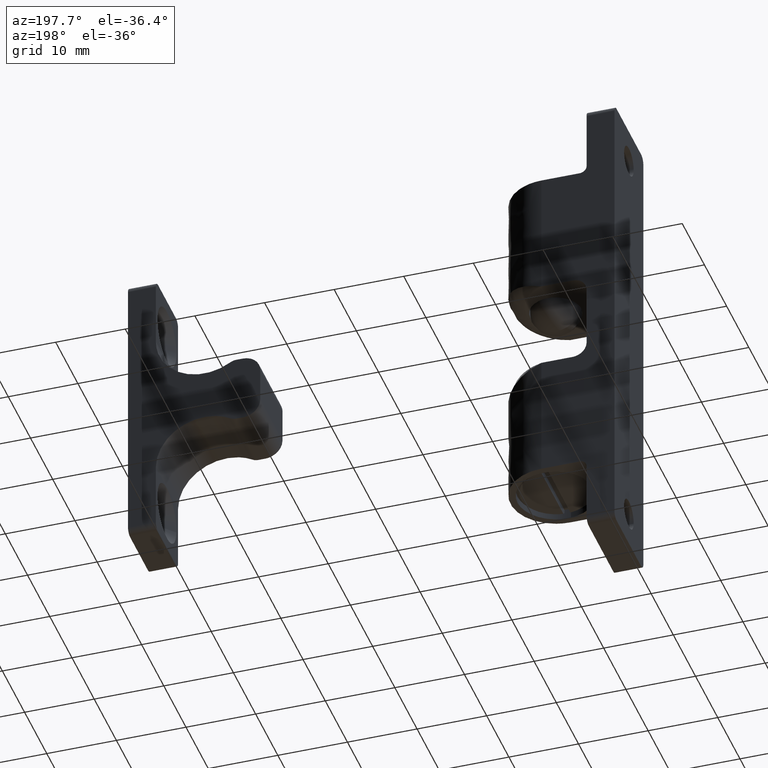
[diagram: clean part render]
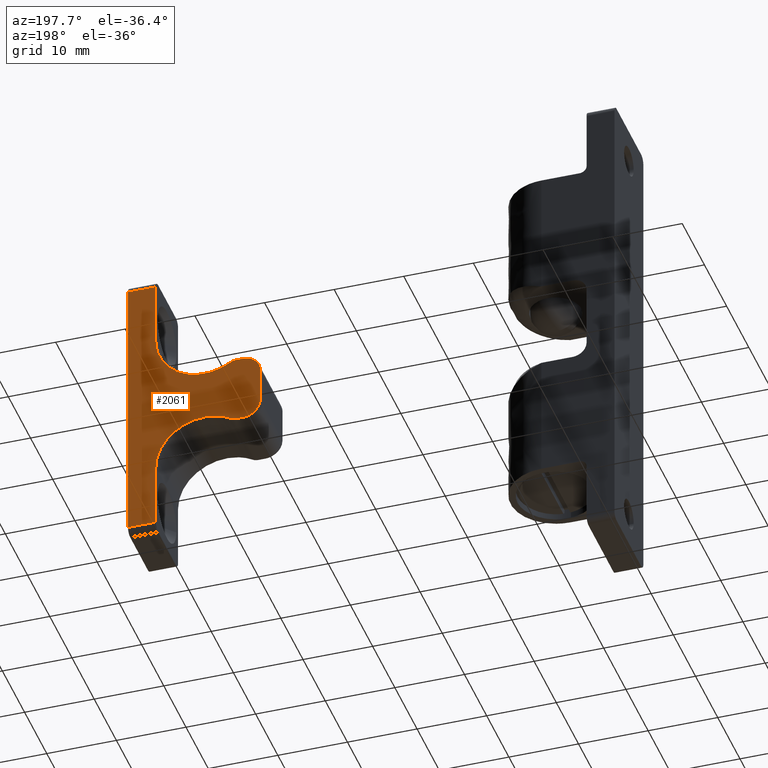
[diagram: same view with one face highlighted and labeled with its STEP entity id]
A machine part, auxiliary view. The second image highlights one B-rep face of the part: STEP entity #2061.
In plain terms, the highlighted face is a freeform B-spline surface patch.
Its self-contained STEP definition (entity closure, byte-faithful):
#1744=CARTESIAN_POINT('',(70.357143802650100,5.0,20.0));
#1745=VERTEX_POINT('',#1744);
#1761=CARTESIAN_POINT('',(66.357143802650100,5.0,20.0));
#1762=VERTEX_POINT('',#1761);
#1763=CARTESIAN_POINT('',(66.357143802650100,5.0,20.0));
#1764=CARTESIAN_POINT('',(70.357143802650100,5.0,20.0));
#1765=QUASI_UNIFORM_CURVE('',1,(#1763,#1764),.UNSPECIFIED.,.F.,.U.);
#1766=EDGE_CURVE('',#1762,#1745,#1765,.T.);
#1805=CARTESIAN_POINT('',(66.357143802650100,5.0,-20.0));
#1806=VERTEX_POINT('',#1805);
#1822=CARTESIAN_POINT('',(70.357143802650100,5.0,-20.0));
#1823=VERTEX_POINT('',#1822);
#1824=CARTESIAN_POINT('',(70.357143802650100,5.0,-20.0));
#1825=CARTESIAN_POINT('',(66.357143802650100,5.0,-20.0));
#1826=QUASI_UNIFORM_CURVE('',1,(#1824,#1825),.UNSPECIFIED.,.F.,.U.);
#1827=EDGE_CURVE('',#1823,#1806,#1826,.T.);
#1913=CARTESIAN_POINT('',(71.306193765824432,5.0,21.997999922472239));
#1914=CARTESIAN_POINT('',(71.306193765824432,5.0,-21.998000995355849));
#1915=CARTESIAN_POINT('',(50.408093329856079,5.0,21.997999922472239));
#1916=CARTESIAN_POINT('',(50.408093329856079,5.0,-21.998000995355849));
#1917=B_SPLINE_SURFACE_WITH_KNOTS('',1,1,((#1913,#1915),(#1914,#1916)),.UNSPECIFIED.,.F.,.F.,.U.,(2,2),(2,2),(0.0,43.996000917828077),(0.0,20.898100435968349),.UNSPECIFIED.);
#1918=CARTESIAN_POINT('',(70.357143802650100,5.0,-20.0));
#1919=CARTESIAN_POINT('',(70.357143802650100,5.0,20.0));
#1920=QUASI_UNIFORM_CURVE('',1,(#1918,#1919),.UNSPECIFIED.,.F.,.U.);
#1921=EDGE_CURVE('',#1823,#1745,#1920,.T.);
#1922=ORIENTED_EDGE('',*,*,#1921,.F.);
#1923=ORIENTED_EDGE('',*,*,#1827,.T.);
#1924=CARTESIAN_POINT('',(66.357143802650199,5.0,-10.699999999999999));
#1925=VERTEX_POINT('',#1924);
#1926=CARTESIAN_POINT('',(66.357143802650199,5.0,-10.699999999999999));
#1927=CARTESIAN_POINT('',(66.357143802650100,5.0,-20.0));
#1928=QUASI_UNIFORM_CURVE('',1,(#1926,#1927),.UNSPECIFIED.,.F.,.U.);
#1929=EDGE_CURVE('',#1925,#1806,#1928,.T.);
#1930=ORIENTED_EDGE('',*,*,#1929,.F.);
#1931=CARTESIAN_POINT('',(55.636649540521113,5.0,-4.770588229900980));
#1932=VERTEX_POINT('',#1931);
#1933=CARTESIAN_POINT('',(66.357143802650199,5.0,-10.699999999999999));
#1934=CARTESIAN_POINT('',(66.357323969569620,4.999999999999996,-10.097816950553490));
#1935=CARTESIAN_POINT('',(66.243630446506131,5.000000000000013,-9.223810337261186));
#1936=CARTESIAN_POINT('',(65.850133263796295,4.999999999999978,-8.021811733403471));
#1937=CARTESIAN_POINT('',(65.427941784387187,5.000000000000032,-7.165074977214172));
#1938=CARTESIAN_POINT('',(64.820385979991684,4.999999999999957,-6.283745843785428));
#1939=CARTESIAN_POINT('',(64.169875251778180,5.000000000000003,-5.584411615700634));
#1940=CARTESIAN_POINT('',(63.368020598776731,5.000000000000012,-4.935952460330062));
#1941=CARTESIAN_POINT('',(62.350211744992713,5.000000000000116,-4.322019987580153));
#1942=CARTESIAN_POINT('',(61.173220756148027,4.999999999999914,-3.896308400244194));
#1943=CARTESIAN_POINT('',(59.961964953373467,5.000000000000053,-3.701283642308237));
#1944=CARTESIAN_POINT('',(58.988103380192861,4.999999999999980,-3.687603219424808));
#1945=CARTESIAN_POINT('',(57.906447564772357,4.999999999999981,-3.821613644424225));
#1946=CARTESIAN_POINT('',(56.781714678927223,5.000000000000094,-4.146883239857901));
#1947=CARTESIAN_POINT('',(55.998605764583083,4.999999999999926,-4.543422076382963));
#1948=CARTESIAN_POINT('',(55.636649540521113,5.0,-4.770588229900980));
#1949=B_SPLINE_CURVE_WITH_KNOTS('',3,(#1933,#1934,#1935,#1936,#1937,#1938,#1939,#1940,#1941,#1942,#1943,#1944,#1945,#1946,#1947,#1948),.UNSPECIFIED.,.F.,.U.,(4,1,1,1,1,1,1,1,1,1,1,1,1,4),(0.000000135131279,1.806483105624618,2.622340153740220,3.787826642804648,4.661950192357793,5.827425139525172,6.643276103920998,7.750445773604302,9.382150152678843,10.372804736471750,11.421752590488239,12.295865163954350,13.636196021245320,14.918203450037700),.UNSPECIFIED.);
#1950=EDGE_CURVE('',#1925,#1932,#1949,.T.);
#1951=ORIENTED_EDGE('',*,*,#1950,.T.);
#1952=CARTESIAN_POINT('',(54.839400802649998,5.0,-5.0));
#1953=VERTEX_POINT('',#1952);
#1954=CARTESIAN_POINT('',(54.839400802649998,5.0,-5.0));
#1955=CARTESIAN_POINT('',(55.271032285777110,5.0,-5.0));
#1956=CARTESIAN_POINT('',(55.636649540521113,5.0,-4.770588229900988));
#1964=(BOUNDED_CURVE()B_SPLINE_CURVE(2,(#1954,#1955,#1956),.UNSPECIFIED.,.F.,.U.)CURVE()GEOMETRIC_REPRESENTATION_ITEM()QUASI_UNIFORM_CURVE()RATIONAL_B_SPLINE_CURVE((1.0,0.961004375623231,1.0))REPRESENTATION_ITEM(''));
#1965=EDGE_CURVE('',#1953,#1932,#1964,.T.);
#1966=ORIENTED_EDGE('',*,*,#1965,.F.);
#1967=CARTESIAN_POINT('',(53.857143802650100,5.0,-5.0));
#1968=VERTEX_POINT('',#1967);
#1969=CARTESIAN_POINT('',(53.857143802650100,5.0,-5.0));
#1970=CARTESIAN_POINT('',(54.839400802649998,5.0,-5.0));
#1971=QUASI_UNIFORM_CURVE('',1,(#1969,#1970),.UNSPECIFIED.,.F.,.U.);
#1972=EDGE_CURVE('',#1968,#1953,#1971,.T.);
#1973=ORIENTED_EDGE('',*,*,#1972,.F.);
#1974=CARTESIAN_POINT('',(51.357143802650199,5.0,-2.500000000000000));
#1975=VERTEX_POINT('',#1974);
#1976=CARTESIAN_POINT('',(51.357143802650100,5.0,-2.500000000000000));
#1977=CARTESIAN_POINT('',(51.357143802650093,5.000000000000001,-5.000000000000001));
#1978=CARTESIAN_POINT('',(53.857143802650100,5.0,-5.0));
#1986=(BOUNDED_CURVE()B_SPLINE_CURVE(2,(#1976,#1977,#1978),.UNSPECIFIED.,.F.,.U.)CURVE()GEOMETRIC_REPRESENTATION_ITEM()QUASI_UNIFORM_CURVE()RATIONAL_B_SPLINE_CURVE((1.0,0.707106781186548,1.0))REPRESENTATION_ITEM(''));
#1987=EDGE_CURVE('',#1975,#1968,#1986,.T.);
#1988=ORIENTED_EDGE('',*,*,#1987,.F.);
#1989=CARTESIAN_POINT('',(51.357143802650100,5.0,2.500000000000000));
#1990=VERTEX_POINT('',#1989);
#1991=CARTESIAN_POINT('',(51.357143802650100,5.0,2.500000000000000));
#1992=CARTESIAN_POINT('',(51.357143802650199,5.0,-2.500000000000000));
#1993=QUASI_UNIFORM_CURVE('',1,(#1991,#1992),.UNSPECIFIED.,.F.,.U.);
#1994=EDGE_CURVE('',#1990,#1975,#1993,.T.);
#1995=ORIENTED_EDGE('',*,*,#1994,.F.);
#1996=CARTESIAN_POINT('',(53.857143802650100,5.0,5.0));
#1997=VERTEX_POINT('',#1996);
#1998=CARTESIAN_POINT('',(53.857143802650100,5.0,5.0));
#1999=CARTESIAN_POINT('',(51.357143802650093,5.000000000000001,5.000000000000001));
#2000=CARTESIAN_POINT('',(51.357143802650100,5.0,2.500000000000000));
#2008=(BOUNDED_CURVE()B_SPLINE_CURVE(2,(#1998,#1999,#2000),.UNSPECIFIED.,.F.,.U.)CURVE()GEOMETRIC_REPRESENTATION_ITEM()QUASI_UNIFORM_CURVE()RATIONAL_B_SPLINE_CURVE((1.0,0.707106781186548,1.0))REPRESENTATION_ITEM(''));
#2009=EDGE_CURVE('',#1997,#1990,#2008,.T.);
#2010=ORIENTED_EDGE('',*,*,#2009,.F.);
#2011=CARTESIAN_POINT('',(54.839400802649998,5.0,5.0));
#2012=VERTEX_POINT('',#2011);
#2013=CARTESIAN_POINT('',(54.839400802649998,5.0,5.0));
#2014=CARTESIAN_POINT('',(53.857143802650100,5.0,5.0));
#2015=QUASI_UNIFORM_CURVE('',1,(#2013,#2014),.UNSPECIFIED.,.F.,.U.);
#2016=EDGE_CURVE('',#2012,#1997,#2015,.T.);
#2017=ORIENTED_EDGE('',*,*,#2016,.F.);
#2018=CARTESIAN_POINT('',(55.636649692584903,5.0,4.770588260462230));
#2019=VERTEX_POINT('',#2018);
#2020=CARTESIAN_POINT('',(55.636649692584903,5.0,4.770588260462230));
#2021=CARTESIAN_POINT('',(55.271032346719224,5.0,5.0));
#2022=CARTESIAN_POINT('',(54.839400802649998,5.0,5.0));
#2030=(BOUNDED_CURVE()B_SPLINE_CURVE(2,(#2020,#2021,#2022),.UNSPECIFIED.,.F.,.U.)CURVE()GEOMETRIC_REPRESENTATION_ITEM()QUASI_UNIFORM_CURVE()RATIONAL_B_SPLINE_CURVE((1.0,0.961004365247366,1.0))REPRESENTATION_ITEM(''));
#2031=EDGE_CURVE('',#2019,#2012,#2030,.T.);
#2032=ORIENTED_EDGE('',*,*,#2031,.F.);
#2033=CARTESIAN_POINT('',(66.357143802650100,5.0,10.699999999999999));
#2034=VERTEX_POINT('',#2033);
#2035=CARTESIAN_POINT('',(55.636649692584903,5.0,4.770588260462230));
#2036=CARTESIAN_POINT('',(56.097298617727667,5.000000000000006,4.481416436360184));
#2037=CARTESIAN_POINT('',(56.962813677057497,4.999999999999981,4.070096192449007));
#2038=CARTESIAN_POINT('',(58.193973707056173,5.000000000000013,3.769034632640408));
#2039=CARTESIAN_POINT('',(59.357758030559062,5.000000000000033,3.668860772483959));
#2040=CARTESIAN_POINT('',(60.641932554932083,4.999999999999897,3.767192695184592));
#2041=CARTESIAN_POINT('',(61.917686704832740,5.000000000000036,4.140418493403894));
#2042=CARTESIAN_POINT('',(62.993353379423112,4.999999999999997,4.689530389140412));
#2043=CARTESIAN_POINT('',(63.914176450370448,5.000000000000004,5.343535484785536));
#2044=CARTESIAN_POINT('',(64.812295365954327,4.999999999999952,6.239220981498807));
#2045=CARTESIAN_POINT('',(65.515279343521101,5.000000000000147,7.296275365227282));
#2046=CARTESIAN_POINT('',(65.959788407868956,4.999999999999763,8.313374292597526));
#2047=CARTESIAN_POINT('',(66.270552518810419,5.000000000000403,9.398587556852931));
#2048=CARTESIAN_POINT('',(66.357242040348481,4.999999999999592,10.194949533980450));
#2049=CARTESIAN_POINT('',(66.357143802650100,5.0,10.699999999999999));
#2050=B_SPLINE_CURVE_WITH_KNOTS('',3,(#2035,#2036,#2037,#2038,#2039,#2040,#2041,#2042,#2043,#2044,#2045,#2046,#2047,#2048,#2049),.UNSPECIFIED.,.F.,.U.,(4,1,1,1,1,1,1,1,1,1,1,1,4),(0.000000097531009,1.631655107074128,2.855428069064038,3.787826586223806,5.128149351708577,6.701569209062853,7.750445697166540,8.741124645607393,10.081430710942239,11.538299981117451,12.528975373141970,13.403077322269910,14.918203337251310),.UNSPECIFIED.);
#2051=EDGE_CURVE('',#2019,#2034,#2050,.T.);
#2052=ORIENTED_EDGE('',*,*,#2051,.T.);
#2053=CARTESIAN_POINT('',(66.357143802650100,5.0,20.0));
#2054=CARTESIAN_POINT('',(66.357143802650100,5.0,10.699999999999999));
#2055=QUASI_UNIFORM_CURVE('',1,(#2053,#2054),.UNSPECIFIED.,.F.,.U.);
#2056=EDGE_CURVE('',#1762,#2034,#2055,.T.);
#2057=ORIENTED_EDGE('',*,*,#2056,.F.);
#2058=ORIENTED_EDGE('',*,*,#1766,.T.);
#2059=EDGE_LOOP('',(#1922,#1923,#1930,#1951,#1966,#1973,#1988,#1995,#2010,#2017,#2032,#2052,#2057,#2058));
#2060=FACE_OUTER_BOUND('',#2059,.T.);
#2061=ADVANCED_FACE('',(#2060),#1917,.T.);